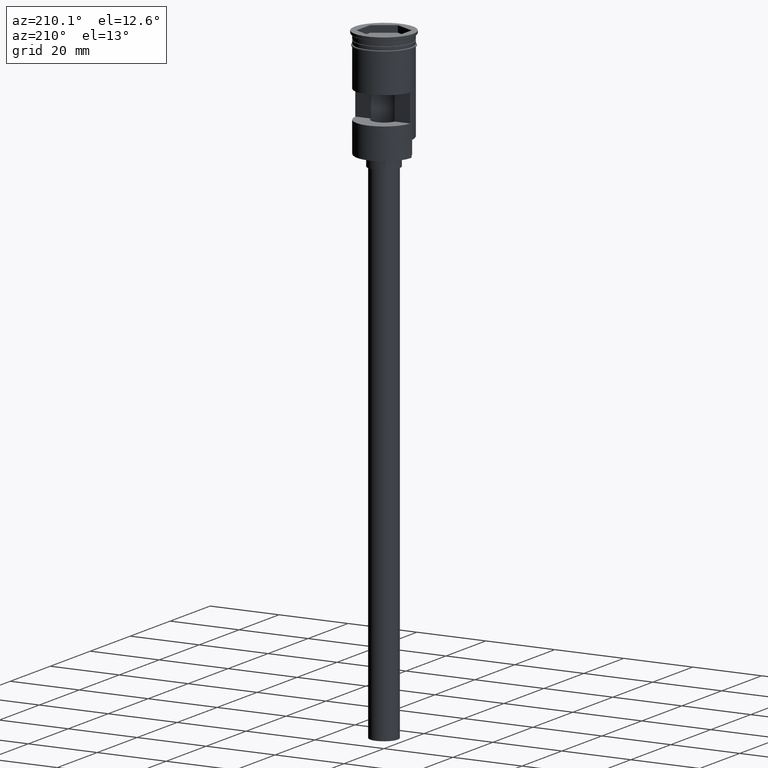
[diagram: clean part render]
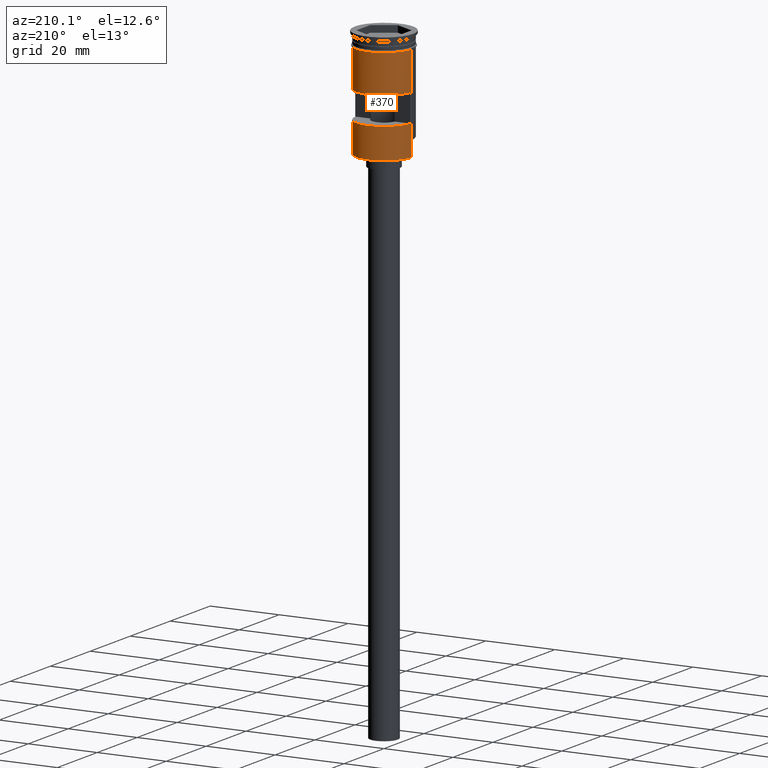
[diagram: same view with one face highlighted and labeled with its STEP entity id]
A machine part, auxiliary view. The second image highlights one B-rep face of the part: STEP entity #370.
In plain terms, the highlighted cylindrical surface (edge-blend (fillet) strip) has radius 8 mm, axis along (-0, -0, 1).
Its self-contained STEP definition (entity closure, byte-faithful):
#28 = ORIENTED_EDGE ( 'NONE', *, *, #1494, .F. ) ;
#81 = CARTESIAN_POINT ( 'NONE',  ( 7.977468270071648604, 0.6000000000000000888, 0.000000000000000000 ) ) ;
#83 = ORIENTED_EDGE ( 'NONE', *, *, #549, .T. ) ;
#130 = AXIS2_PLACEMENT_3D ( 'NONE', #633, #624, #252 ) ;
#164 = DIRECTION ( 'NONE',  ( -0.000000000000000000, -0.000000000000000000, 1.000000000000000000 ) ) ;
#165 = EDGE_CURVE ( 'NONE', #1284, #412, #1091, .T. ) ;
#172 = CARTESIAN_POINT ( 'NONE',  ( -7.999999999999992895, 0.000000000000000000, -31.79999999999997939 ) ) ;
#177 = FACE_OUTER_BOUND ( 'NONE', #562, .T. ) ;
#178 = ORIENTED_EDGE ( 'NONE', *, *, #615, .F. ) ;
#208 = CARTESIAN_POINT ( 'NONE',  ( -7.977468270071648604, 0.6000000000000000888, -15.00000000000000000 ) ) ;
#229 = CARTESIAN_POINT ( 'NONE',  ( 7.999999999999992895, 9.797174393178817769E-16, -31.79999999999997939 ) ) ;
#252 = DIRECTION ( 'NONE',  ( 0.000000000000000000, -1.000000000000000000, -2.168404344971009854E-16 ) ) ;
#274 = CARTESIAN_POINT ( 'NONE',  ( -7.999999999999992895, 0.000000000000000000, -32.00000000000000000 ) ) ;
#276 = ORIENTED_EDGE ( 'NONE', *, *, #647, .F. ) ;
#311 = DIRECTION ( 'NONE',  ( -0.000000000000000000, -0.000000000000000000, 1.000000000000000000 ) ) ;
#331 = DIRECTION ( 'NONE',  ( -1.000000000000000000, 0.000000000000000000, 0.000000000000000000 ) ) ;
#350 = ORIENTED_EDGE ( 'NONE', *, *, #982, .F. ) ;
#370 = ADVANCED_FACE ( 'NONE', ( #1390, #177 ), #1271, .T. ) ;
#378 = LINE ( 'NONE', #274, #496 ) ;
#411 = DIRECTION ( 'NONE',  ( 1.000000000000000000, 0.000000000000000000, 0.000000000000000000 ) ) ;
#412 = VERTEX_POINT ( 'NONE', #1021 ) ;
#418 = VECTOR ( 'NONE', #1468, 1000.000000000000000 ) ;
#419 = AXIS2_PLACEMENT_3D ( 'NONE', #465, #1551, #331 ) ;
#450 = CARTESIAN_POINT ( 'NONE',  ( -7.999999999999992895, 0.000000000000000000, -27.29999999999996518 ) ) ;
#451 = VERTEX_POINT ( 'NONE', #172 ) ;
#465 = CARTESIAN_POINT ( 'NONE',  ( 0.000000000000000000, 0.000000000000000000, -31.79999999999997939 ) ) ;
#496 = VECTOR ( 'NONE', #1105, 1000.000000000000000 ) ;
#549 = EDGE_CURVE ( 'NONE', #1284, #451, #913, .T. ) ;
#562 = EDGE_LOOP ( 'NONE', ( #709, #1025, #178, #28, #1056, #83 ) ) ;
#573 = CARTESIAN_POINT ( 'NONE',  ( 7.977468270071646828, 0.6000000000000000888, -15.00000000000000000 ) ) ;
#586 = VERTEX_POINT ( 'NONE', #450 ) ;
#591 = ORIENTED_EDGE ( 'NONE', *, *, #1362, .F. ) ;
#594 = LINE ( 'NONE', #81, #888 ) ;
#615 = EDGE_CURVE ( 'NONE', #1328, #864, #914, .T. ) ;
#623 = CIRCLE ( 'NONE', #130, 7.999999999999996447 ) ;
#624 = DIRECTION ( 'NONE',  ( -0.000000000000000000, 2.344220913482172642E-16, -1.000000000000000000 ) ) ;
#633 = CARTESIAN_POINT ( 'NONE',  ( 0.000000000000000000, 0.000000000000000000, -15.00000000000000000 ) ) ;
#647 = EDGE_CURVE ( 'NONE', #918, #900, #623, .T. ) ;
#662 = CARTESIAN_POINT ( 'NONE',  ( 7.999999999999996447, 0.000000000000000000, 0.000000000000000000 ) ) ;
#707 = CARTESIAN_POINT ( 'NONE',  ( 7.977468270071646828, 0.6000000000000000888, -23.00000000000000000 ) ) ;
#709 = ORIENTED_EDGE ( 'NONE', *, *, #1344, .T. ) ;
#755 = AXIS2_PLACEMENT_3D ( 'NONE', #997, #872, #1486 ) ;
#771 = CARTESIAN_POINT ( 'NONE',  ( 0.000000000000000000, 0.000000000000000000, -3.999999999999997335 ) ) ;
#773 = ORIENTED_EDGE ( 'NONE', *, *, #975, .F. ) ;
#776 = EDGE_CURVE ( 'NONE', #586, #864, #1180, .T. ) ;
#789 = CARTESIAN_POINT ( 'NONE',  ( -7.999999999999996447, 9.797174393178821713E-16, 0.000000000000000000 ) ) ;
#812 = CARTESIAN_POINT ( 'NONE',  ( -8.000000000000000000, 9.797174393178825657E-16, -3.999999999999997335 ) ) ;
#864 = VERTEX_POINT ( 'NONE', #812 ) ;
#872 = DIRECTION ( 'NONE',  ( 0.000000000000000000, 0.000000000000000000, 1.000000000000000000 ) ) ;
#877 = DIRECTION ( 'NONE',  ( 1.000000000000000000, 0.000000000000000000, 0.000000000000000000 ) ) ;
#881 = AXIS2_PLACEMENT_3D ( 'NONE', #1027, #1524, #411 ) ;
#888 = VECTOR ( 'NONE', #1071, 1000.000000000000000 ) ;
#900 = VERTEX_POINT ( 'NONE', #573 ) ;
#901 = LINE ( 'NONE', #662, #1251 ) ;
#912 = DIRECTION ( 'NONE',  ( -0.000000000000000000, -0.000000000000000000, 1.000000000000000000 ) ) ;
#913 = CIRCLE ( 'NONE', #419, 7.999999999999996447 ) ;
#914 = CIRCLE ( 'NONE', #1534, 8.000000000000000000 ) ;
#918 = VERTEX_POINT ( 'NONE', #208 ) ;
#937 = VERTEX_POINT ( 'NONE', #707 ) ;
#975 = EDGE_CURVE ( 'NONE', #1599, #918, #1342, .T. ) ;
#982 = EDGE_CURVE ( 'NONE', #900, #937, #594, .T. ) ;
#997 = CARTESIAN_POINT ( 'NONE',  ( 0.000000000000000000, 0.000000000000000000, -23.00000000000000000 ) ) ;
#1021 = CARTESIAN_POINT ( 'NONE',  ( 7.999999999999996447, 9.797174393178821713E-16, -27.29999999999996518 ) ) ;
#1025 = ORIENTED_EDGE ( 'NONE', *, *, #776, .T. ) ;
#1027 = CARTESIAN_POINT ( 'NONE',  ( 0.000000000000000000, 0.000000000000000000, 0.000000000000000000 ) ) ;
#1041 = VECTOR ( 'NONE', #1579, 1000.000000000000000 ) ;
#1049 = EDGE_LOOP ( 'NONE', ( #350, #276, #773, #591 ) ) ;
#1050 = CARTESIAN_POINT ( 'NONE',  ( -7.977468270071648604, 0.6000000000000000888, -23.00000000000000000 ) ) ;
#1056 = ORIENTED_EDGE ( 'NONE', *, *, #165, .F. ) ;
#1071 = DIRECTION ( 'NONE',  ( 0.000000000000000000, 0.000000000000000000, -1.000000000000000000 ) ) ;
#1091 = LINE ( 'NONE', #1099, #418 ) ;
#1099 = CARTESIAN_POINT ( 'NONE',  ( 7.999999999999992895, 9.797174393178817769E-16, -32.00000000000000000 ) ) ;
#1105 = DIRECTION ( 'NONE',  ( -0.000000000000000000, -0.000000000000000000, 1.000000000000000000 ) ) ;
#1118 = CIRCLE ( 'NONE', #755, 7.999999999999996447 ) ;
#1180 = LINE ( 'NONE', #789, #1247 ) ;
#1247 = VECTOR ( 'NONE', #912, 1000.000000000000000 ) ;
#1251 = VECTOR ( 'NONE', #311, 1000.000000000000000 ) ;
#1271 = CYLINDRICAL_SURFACE ( 'NONE', #881, 7.999999999999996447 ) ;
#1284 = VERTEX_POINT ( 'NONE', #229 ) ;
#1328 = VERTEX_POINT ( 'NONE', #1492 ) ;
#1342 = LINE ( 'NONE', #1585, #1041 ) ;
#1344 = EDGE_CURVE ( 'NONE', #451, #586, #378, .T. ) ;
#1362 = EDGE_CURVE ( 'NONE', #937, #1599, #1118, .T. ) ;
#1390 = FACE_BOUND ( 'NONE', #1049, .T. ) ;
#1468 = DIRECTION ( 'NONE',  ( -0.000000000000000000, -0.000000000000000000, 1.000000000000000000 ) ) ;
#1486 = DIRECTION ( 'NONE',  ( -1.000000000000000000, 0.000000000000000000, 0.000000000000000000 ) ) ;
#1492 = CARTESIAN_POINT ( 'NONE',  ( 8.000000000000000000, 0.000000000000000000, -3.999999999999997335 ) ) ;
#1494 = EDGE_CURVE ( 'NONE', #412, #1328, #901, .T. ) ;
#1524 = DIRECTION ( 'NONE',  ( -0.000000000000000000, -0.000000000000000000, 1.000000000000000000 ) ) ;
#1534 = AXIS2_PLACEMENT_3D ( 'NONE', #771, #164, #877 ) ;
#1551 = DIRECTION ( 'NONE',  ( 0.000000000000000000, 0.000000000000000000, 1.000000000000000000 ) ) ;
#1579 = DIRECTION ( 'NONE',  ( -0.000000000000000000, -0.000000000000000000, 1.000000000000000000 ) ) ;
#1585 = CARTESIAN_POINT ( 'NONE',  ( -7.977468270071648604, 0.6000000000000000888, 0.000000000000000000 ) ) ;
#1599 = VERTEX_POINT ( 'NONE', #1050 ) ;